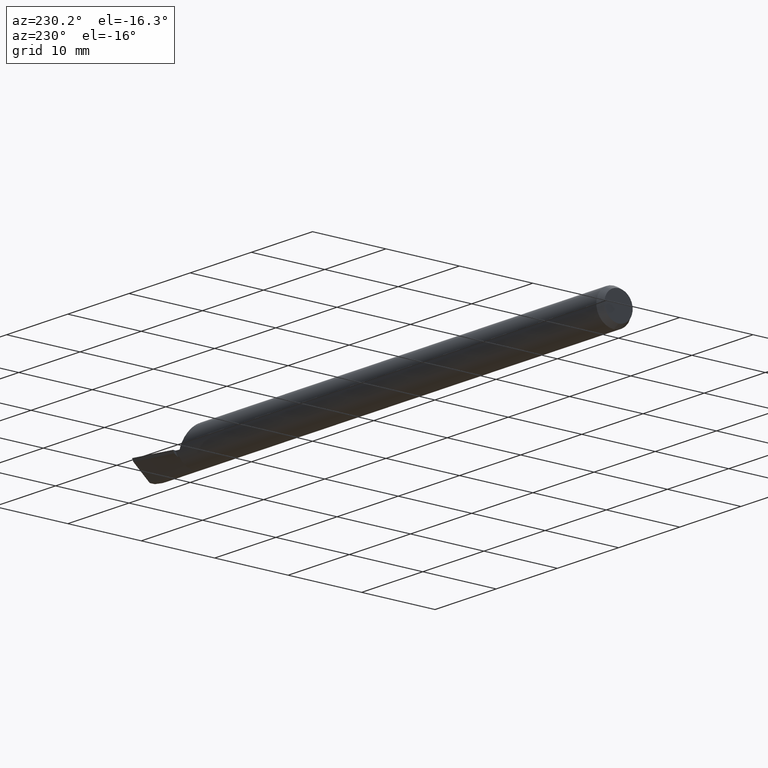
[diagram: clean part render]
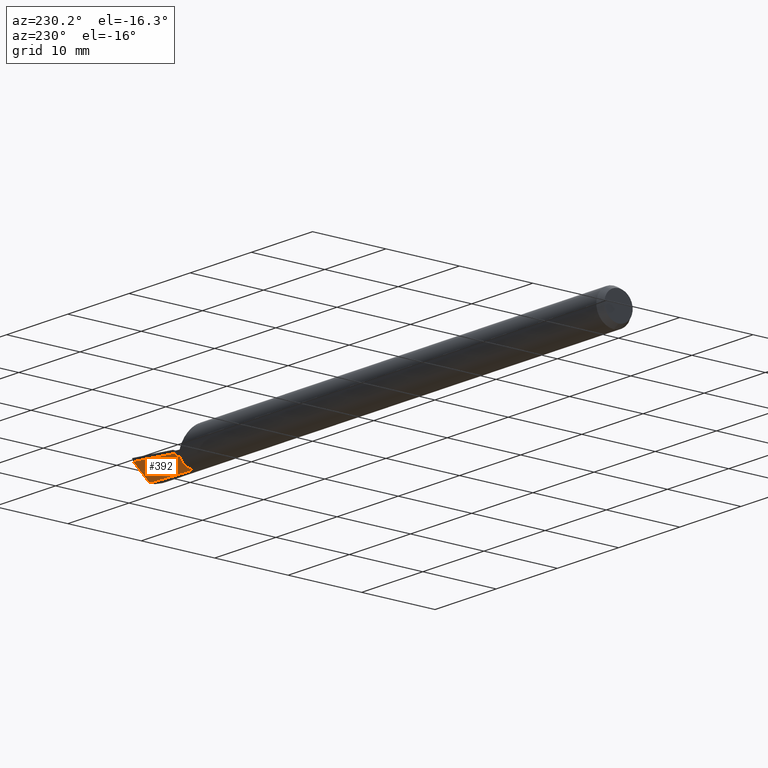
[diagram: same view with one face highlighted and labeled with its STEP entity id]
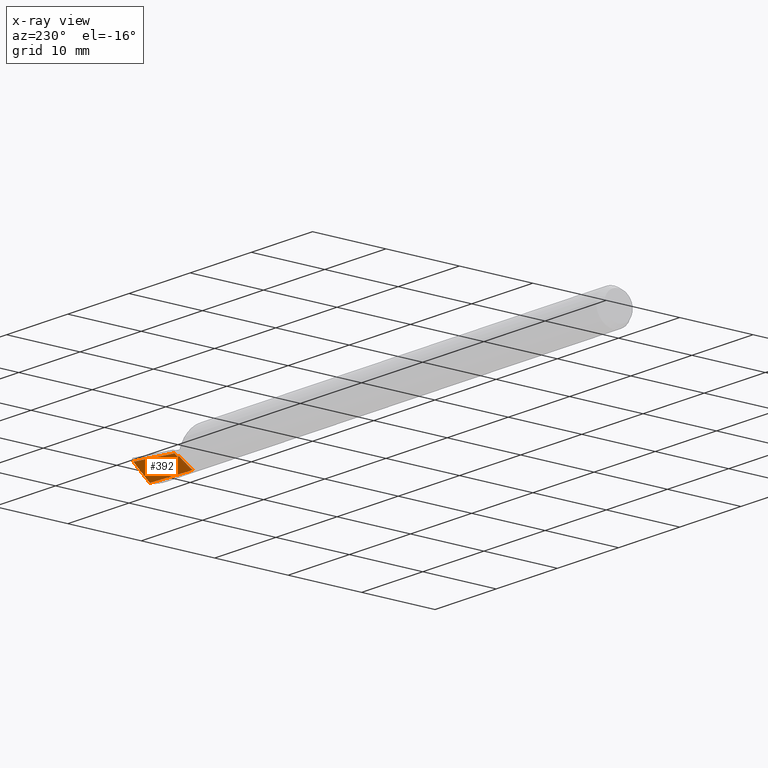
[diagram: x-ray of the same camera — body ghosted, the highlighted face saturated]
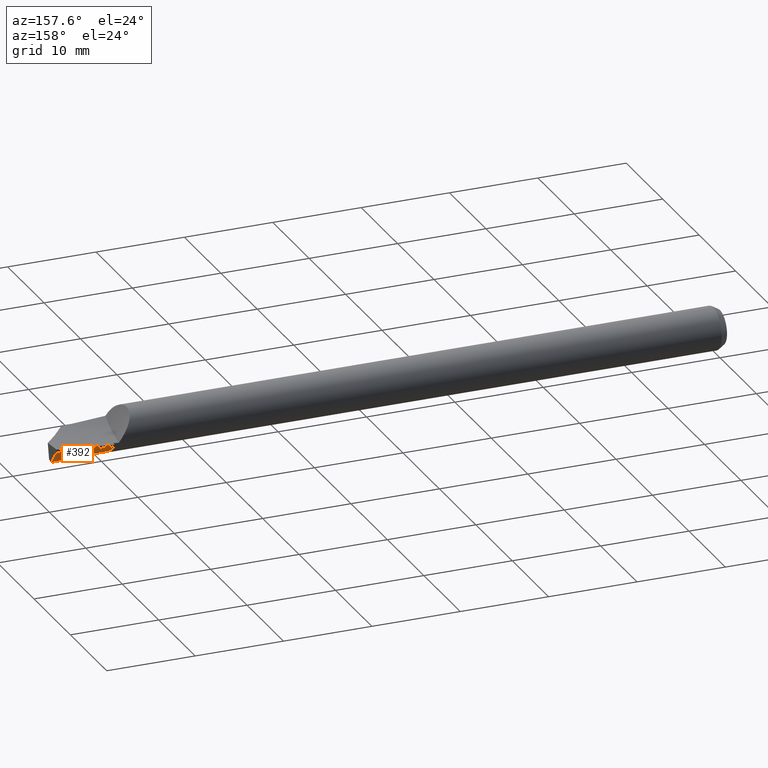
[diagram: same view with one face highlighted and labeled with its STEP entity id]
A machine part, auxiliary view. The second image highlights one B-rep face of the part: STEP entity #392.
The next image is the same camera in x-ray: the body ghosted, the highlighted face saturated — about 0% of this face is hidden behind the body in this view.
A second angle (auxiliary view) of the same face is appended — the face is thin or edge-on in the first view.
In plain terms, the highlighted face is a freeform B-spline surface patch.
Its self-contained STEP definition (entity closure, byte-faithful):
#6 = CARTESIAN_POINT ( 'NONE',  ( 2.421428571428573040, -0.06823486854704864657, -0.1112492264663436647 ) ) ;
#8 = CARTESIAN_POINT ( 'NONE',  ( 2.740000000000000213, 0.01010341027200485978, -0.09310340273521444665 ) ) ;
#15 = VERTEX_POINT ( 'NONE', #429 ) ;
#23 = CARTESIAN_POINT ( 'NONE',  ( 2.729999274822195510, 0.08034742759774916865, -0.04811042881477657629 ) ) ;
#24 = CARTESIAN_POINT ( 'NONE',  ( 2.998093014994710259, 0.1033114702713285454, -0.01516179632514422226 ) ) ;
#26 = B_SPLINE_CURVE_WITH_KNOTS ( 'NONE', 3,
 ( #585, #127, #281, #116 ),
 .UNSPECIFIED., .F., .F.,
 ( 4, 4 ),
 ( 0.0002546024990688713929, 0.006558907732038860190 ),
 .UNSPECIFIED. ) ;
#31 = EDGE_CURVE ( 'NONE', #15, #461, #356, .T. ) ;
#40 = CARTESIAN_POINT ( 'NONE',  ( 2.729999274822195510, 0.08034742759774916865, -0.04811042881477657629 ) ) ;
#46 = VERTEX_POINT ( 'NONE', #652 ) ;
#55 = LINE ( 'NONE', #368, #481 ) ;
#61 = ORIENTED_EDGE ( 'NONE', *, *, #245, .T. ) ;
#72 = CARTESIAN_POINT ( 'NONE',  ( 2.614285714285715212, 0.09364225179700762236, -0.04619814537202305421 ) ) ;
#74 = CARTESIAN_POINT ( 'NONE',  ( 2.987763293907419904, 0.02399154554081830634, -0.09364999999999999714 ) ) ;
#75 = EDGE_CURVE ( 'NONE', #543, #552, #459, .T. ) ;
#94 =( BOUNDED_CURVE ( )  B_SPLINE_CURVE ( 2, ( #24, #184, #375 ),
 .UNSPECIFIED., .F., .T. ) 
 B_SPLINE_CURVE_WITH_KNOTS ( ( 3, 3 ),
 ( 0.002502368612308748450, 0.3365654910811018419 ),
 .UNSPECIFIED. ) 
 CURVE ( )  GEOMETRIC_REPRESENTATION_ITEM ( )  RATIONAL_B_SPLINE_CURVE ( ( 0.9998773835097440887, 0.9917339761046763957, 0.9945822379532470725 ) ) 
 REPRESENTATION_ITEM ( '' )  );
#106 = CARTESIAN_POINT ( 'NONE',  ( 2.734997358170834225, 0.009725048957912103831, -0.09314446181012504822 ) ) ;
#116 = CARTESIAN_POINT ( 'NONE',  ( 2.987763293907419904, 0.02399154554081830634, -0.09364999999999999714 ) ) ;
#127 = CARTESIAN_POINT ( 'NONE',  ( 2.822563398559102321, 0.01457830066443164228, -0.09364999999999995550 ) ) ;
#139 = CARTESIAN_POINT ( 'NONE',  ( 2.740000000000000213, 0.01010341027200485978, -0.09310340273521444665 ) ) ;
#141 = CARTESIAN_POINT ( 'NONE',  ( 2.739999999999999769, 0.08074344207419087427, -0.04744279778861887342 ) ) ;
#146 = CARTESIAN_POINT ( 'NONE',  ( 2.734997358171129545, 0.08055064010576531985, -0.04777092967153879349 ) ) ;
#161 = VERTEX_POINT ( 'NONE', #204 ) ;
#162 = CARTESIAN_POINT ( 'NONE',  ( 2.998093014994710259, 0.1033114702713285454, -0.01516179632514422226 ) ) ;
#168 = ORIENTED_EDGE ( 'NONE', *, *, #547, .T. ) ;
#184 = CARTESIAN_POINT ( 'NONE',  ( 2.869734063093712262, 0.1017135818884408738, -0.02604970133489085959 ) ) ;
#186 = CARTESIAN_POINT ( 'NONE',  ( 2.998093014994710259, 0.1033114702713285454, -0.01516179632514422226 ) ) ;
#204 = CARTESIAN_POINT ( 'NONE',  ( 2.739999999999999769, 0.09788107471506568569, -0.03636530173190489351 ) ) ;
#224 = EDGE_CURVE ( 'NONE', #543, #46, #55, .T. ) ;
#237 = CARTESIAN_POINT ( 'NONE',  ( 2.614285714285715212, -0.04937609166404756389, -0.1190696311099668364 ) ) ;
#245 = EDGE_CURVE ( 'NONE', #363, #46, #278, .T. ) ;
#278 =( BOUNDED_CURVE ( )  B_SPLINE_CURVE ( 2, ( #626, #106, #528 ),
 .UNSPECIFIED., .F., .T. ) 
 B_SPLINE_CURVE_WITH_KNOTS ( ( 3, 3 ),
 ( 0.3365654910811016753, 0.3494856403912289800 ),
 .UNSPECIFIED. ) 
 CURVE ( )  GEOMETRIC_REPRESENTATION_ITEM ( )  RATIONAL_B_SPLINE_CURVE ( ( 0.9945822379532471835, 0.9946923966803939976, 0.9948189969154069834 ) ) 
 REPRESENTATION_ITEM ( '' )  );
#281 = CARTESIAN_POINT ( 'NONE',  ( 2.905162067882043786, 0.01930639470269341143, -0.09364999999999996938 ) ) ;
#282 = CARTESIAN_POINT ( 'NONE',  ( 2.421428571428573040, 0.08632518439822819967, -0.06102962101362140179 ) ) ;
#283 = CARTESIAN_POINT ( 'NONE',  ( 2.991181280851205937, 0.05065302880610503961, -0.06770867322618520645 ) ) ;
#286 = CARTESIAN_POINT ( 'NONE',  ( 3.000000000000000444, -0.01016491419934357175, -0.1284999999999999754 ) ) ;
#302 =( BOUNDED_CURVE ( )  B_SPLINE_CURVE ( 1, ( #668, #559 ),
 .UNSPECIFIED., .F., .T. ) 
 B_SPLINE_CURVE_WITH_KNOTS ( ( 2, 2 ),
 ( 0.002893631882954621985, 0.003411947105638064512 ),
 .UNSPECIFIED. ) 
 CURVE ( )  GEOMETRIC_REPRESENTATION_ITEM ( )  RATIONAL_B_SPLINE_CURVE ( ( 0.9945822379532474056, 0.9945822379532474056 ) ) 
 REPRESENTATION_ITEM ( '' )  );
#342 = EDGE_CURVE ( 'NONE', #461, #161, #94, .T. ) ;
#345 = CARTESIAN_POINT ( 'NONE',  ( 2.739999999999999769, 0.08074344207419087427, -0.04744279778861887342 ) ) ;
#356 = B_SPLINE_CURVE_WITH_KNOTS ( 'NONE', 3,
 ( #74, #283, #489, #186 ),
 .UNSPECIFIED., .F., .F.,
 ( 4, 4 ),
 ( 2.604727758722802101E-05, 0.002872561671176804277 ),
 .UNSPECIFIED. ) ;
#363 = VERTEX_POINT ( 'NONE', #8 ) ;
#368 = CARTESIAN_POINT ( 'NONE',  ( 2.729999999999999982, 0.09757429370828984982, -0.03718060199562601281 ) ) ;
#370 = VERTEX_POINT ( 'NONE', #432 ) ;
#375 = CARTESIAN_POINT ( 'NONE',  ( 2.739999999999999769, 0.09788107471506568569, -0.03636530173190489351 ) ) ;
#379 = ORIENTED_EDGE ( 'NONE', *, *, #224, .F. ) ;
#392 = ADVANCED_FACE ( 'NONE', ( #495 ), #674, .T. ) ;
#428 = CARTESIAN_POINT ( 'NONE',  ( 2.228571428571430424, 0.07478306174353623048, -0.07287409439362664554 ) ) ;
#429 = CARTESIAN_POINT ( 'NONE',  ( 2.987763293907419904, 0.02399154554081830634, -0.09364999999999999714 ) ) ;
#432 = CARTESIAN_POINT ( 'NONE',  ( 2.740000000000000213, 0.009257787481579697955, -0.09365000000000002489 ) ) ;
#446 = ORIENTED_EDGE ( 'NONE', *, *, #538, .F. ) ;
#454 = CARTESIAN_POINT ( 'NONE',  ( 2.740000000000000213, 0.009257787481579697955, -0.09365000000000002489 ) ) ;
#459 =( BOUNDED_CURVE ( )  B_SPLINE_CURVE ( 2, ( #40, #146, #141 ),
 .UNSPECIFIED., .F., .T. ) 
 B_SPLINE_CURVE_WITH_KNOTS ( ( 3, 3 ),
 ( 0.6505143596091145231, 0.6634345089193156575 ),
 .UNSPECIFIED. ) 
 CURVE ( )  GEOMETRIC_REPRESENTATION_ITEM ( )  RATIONAL_B_SPLINE_CURVE ( ( 0.9948189969154004331, 0.9946923966803871142, 0.9945822379532401891 ) ) 
 REPRESENTATION_ITEM ( '' )  );
#461 = VERTEX_POINT ( 'NONE', #162 ) ;
#476 = CARTESIAN_POINT ( 'NONE',  ( 2.807142857142857828, 0.1009593191957870867, -0.03136666973042469969 ) ) ;
#477 = ORIENTED_EDGE ( 'NONE', *, *, #342, .F. ) ;
#481 = VECTOR ( 'NONE', #677, 39.37007874015748143 ) ;
#489 = CARTESIAN_POINT ( 'NONE',  ( 2.994624434142509450, 0.07709563099491967275, -0.04154683450407890138 ) ) ;
#490 =( BOUNDED_CURVE ( )  B_SPLINE_CURVE ( 1, ( #454, #139 ),
 .UNSPECIFIED., .F., .T. ) 
 B_SPLINE_CURVE_WITH_KNOTS ( ( 2, 2 ),
 ( 0.0007316003027894440189, 0.0007571755484555243911 ),
 .UNSPECIFIED. ) 
 CURVE ( )  GEOMETRIC_REPRESENTATION_ITEM ( )  RATIONAL_B_SPLINE_CURVE ( ( 0.9945822379532474056, 0.9945822379532474056 ) ) 
 REPRESENTATION_ITEM ( '' )  );
#491 = CARTESIAN_POINT ( 'NONE',  ( 2.807142857142857828, -0.03051731478104647774, -0.1268900357535900081 ) ) ;
#495 = FACE_OUTER_BOUND ( 'NONE', #496, .T. ) ;
#496 = EDGE_LOOP ( 'NONE', ( #584, #446, #168, #61, #379, #523, #681, #477 ) ) ;
#523 = ORIENTED_EDGE ( 'NONE', *, *, #75, .T. ) ;
#528 = CARTESIAN_POINT ( 'NONE',  ( 2.729997824466591450, 0.009341362972296943235, -0.09318294592930337350 ) ) ;
#538 = EDGE_CURVE ( 'NONE', #370, #15, #26, .T. ) ;
#543 = VERTEX_POINT ( 'NONE', #23 ) ;
#547 = EDGE_CURVE ( 'NONE', #370, #363, #490, .T. ) ;
#549 = CARTESIAN_POINT ( 'NONE',  ( 2.228571428571430424, -0.08375399325321494781, -0.09798389711998821416 ) ) ;
#552 = VERTEX_POINT ( 'NONE', #345 ) ;
#559 = CARTESIAN_POINT ( 'NONE',  ( 2.739999999999999769, 0.09788107471506568569, -0.03636530173190489351 ) ) ;
#561 = EDGE_CURVE ( 'NONE', #552, #161, #302, .T. ) ;
#584 = ORIENTED_EDGE ( 'NONE', *, *, #31, .F. ) ;
#585 = CARTESIAN_POINT ( 'NONE',  ( 2.740000000000000213, 0.009257787481579697955, -0.09365000000000002489 ) ) ;
#626 = CARTESIAN_POINT ( 'NONE',  ( 2.740000000000000213, 0.01010341027200485978, -0.09310340273521444665 ) ) ;
#645 = CARTESIAN_POINT ( 'NONE',  ( 3.000000000000000444, 0.1033350858006551326, -0.01499999999999999944 ) ) ;
#652 = CARTESIAN_POINT ( 'NONE',  ( 2.729997824466591450, 0.009341362972296943235, -0.09318294592930337350 ) ) ;
#668 = CARTESIAN_POINT ( 'NONE',  ( 2.739999999999999769, 0.08074344207419087427, -0.04744279778861887342 ) ) ;
#674 =( BOUNDED_SURFACE ( )  B_SPLINE_SURFACE ( 1, 2, ( 
 ( #645, #476, #72, #282, #428 ),
 ( #286, #491, #237, #6, #549 ) ),
 .UNSPECIFIED., .F., .F., .F. ) 
 B_SPLINE_SURFACE_WITH_KNOTS ( ( 2, 2 ),
 ( 3, 2, 3 ),
 ( 0.000000000000000000, 1.000000000000000000 ),
 ( 0.000000000000000000, 0.5000000000000000000, 1.000000000000000000 ),
 .UNSPECIFIED. ) 
 GEOMETRIC_REPRESENTATION_ITEM ( )  RATIONAL_B_SPLINE_SURFACE ( (
 ( 1.000000000000000000, 0.9876883405951377704, 1.000000000000000000, 0.9876883405951377704, 1.000000000000000000),
 ( 1.000000000000000000, 0.9876883405951377704, 1.000000000000000000, 0.9876883405951377704, 1.000000000000000000) ) ) 
 REPRESENTATION_ITEM ( '' )  SURFACE ( )  );
#677 = DIRECTION ( 'NONE',  ( 0.000000000000000000, -0.8443279255020124108, -0.5358267949790009865 ) ) ;
#681 = ORIENTED_EDGE ( 'NONE', *, *, #561, .T. ) ;